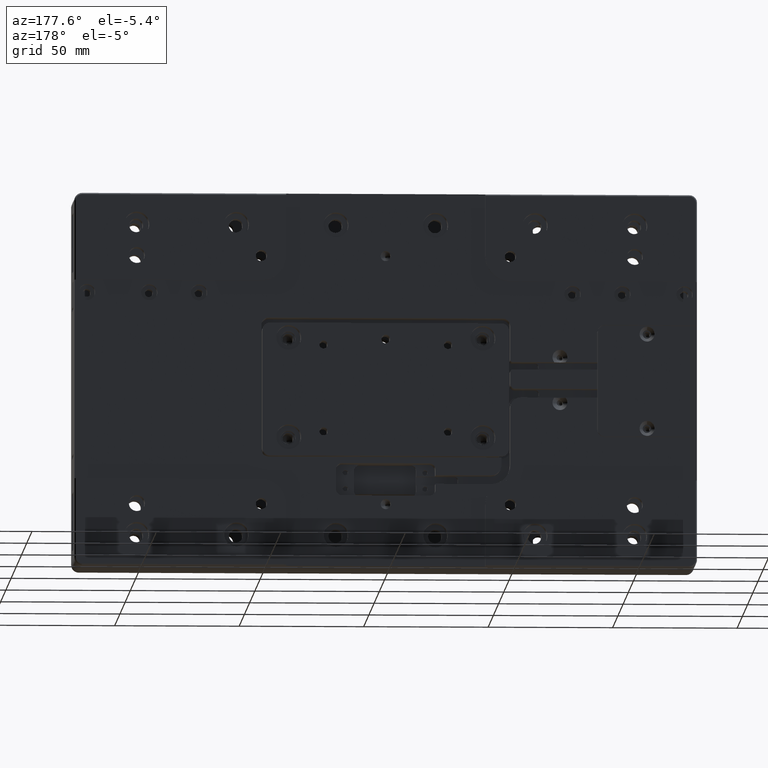
[diagram: clean part render]
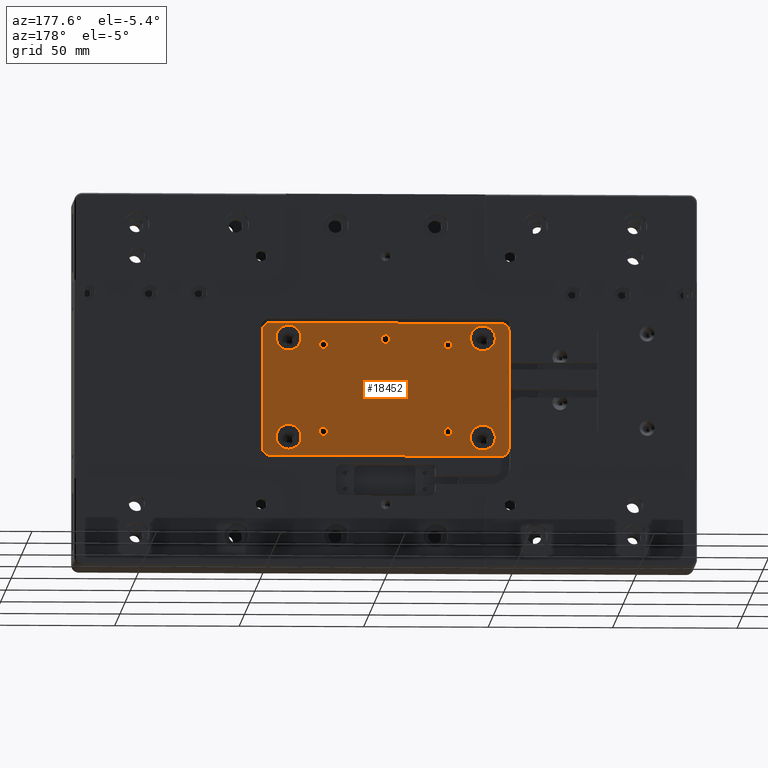
[diagram: same view with one face highlighted and labeled with its STEP entity id]
A machine part, auxiliary view. The second image highlights one B-rep face of the part: STEP entity #18452.
In plain terms, the highlighted planar face has unit normal (0, 1, 0).
Its self-contained STEP definition (entity closure, byte-faithful):
#138 = ORIENTED_EDGE ( 'NONE', *, *, #16861, .T. ) ;
#158 = CARTESIAN_POINT ( 'NONE',  ( 49.50000000000000000, 11.50000000000000000, -27.50000000000000000 ) ) ;
#603 = FACE_BOUND ( 'NONE', #11446, .T. ) ;
#812 = DIRECTION ( 'NONE',  ( 0.000000000000000000, 1.000000000000000000, 0.000000000000000000 ) ) ;
#910 = EDGE_CURVE ( 'NONE', #29166, #18075, #8460, .T. ) ;
#1286 = CARTESIAN_POINT ( 'NONE',  ( 39.00000000000000000, 11.50000000000000000, 22.00000000000000355 ) ) ;
#1703 = AXIS2_PLACEMENT_3D ( 'NONE', #1961, #26252, #6617 ) ;
#1726 = CARTESIAN_POINT ( 'NONE',  ( -39.00000000000000000, 11.50000000000000000, -18.00000000000000000 ) ) ;
#1756 = ORIENTED_EDGE ( 'NONE', *, *, #22002, .T. ) ;
#1917 = VERTEX_POINT ( 'NONE', #30076 ) ;
#1961 = CARTESIAN_POINT ( 'NONE',  ( 46.50000000000000000, 11.50000000000000000, -27.50000000000000000 ) ) ;
#2271 = ORIENTED_EDGE ( 'NONE', *, *, #13507, .T. ) ;
#2436 = CIRCLE ( 'NONE', #17234, 2.999999999999999112 ) ;
#2587 = DIRECTION ( 'NONE',  ( 0.000000000000000000, -0.000000000000000000, 1.000000000000000000 ) ) ;
#2752 = CIRCLE ( 'NONE', #26158, 5.000000000000000888 ) ;
#2876 = EDGE_CURVE ( 'NONE', #2991, #2991, #2752, .T. ) ;
#2991 = VERTEX_POINT ( 'NONE', #13884 ) ;
#3312 = CARTESIAN_POINT ( 'NONE',  ( 46.50000000000000000, 11.50000000000000000, 20.00000000000000000 ) ) ;
#3457 = DIRECTION ( 'NONE',  ( 0.000000000000000000, 1.000000000000000000, 0.000000000000000000 ) ) ;
#3490 = DIRECTION ( 'NONE',  ( 0.000000000000000000, -1.000000000000000000, 0.000000000000000000 ) ) ;
#3536 = ORIENTED_EDGE ( 'NONE', *, *, #15125, .T. ) ;
#3613 = CARTESIAN_POINT ( 'NONE',  ( 39.00000000000000000, 11.50000000000000000, -23.00000000000000000 ) ) ;
#3790 = CIRCLE ( 'NONE', #10034, 1.650000000000000355 ) ;
#4622 = DIRECTION ( 'NONE',  ( 0.000000000000000000, 0.000000000000000000, -1.000000000000000000 ) ) ;
#4669 = ORIENTED_EDGE ( 'NONE', *, *, #29145, .T. ) ;
#5189 = AXIS2_PLACEMENT_3D ( 'NONE', #24851, #32365, #18603 ) ;
#5218 = EDGE_LOOP ( 'NONE', ( #15465 ) ) ;
#5574 = EDGE_LOOP ( 'NONE', ( #10651 ) ) ;
#5580 = CIRCLE ( 'NONE', #8440, 1.749999999999999778 ) ;
#5934 = EDGE_CURVE ( 'NONE', #26893, #26893, #12034, .T. ) ;
#6070 = VECTOR ( 'NONE', #24892, 1000.000000000000000 ) ;
#6338 = DIRECTION ( 'NONE',  ( 0.000000000000000000, 0.000000000000000000, -1.000000000000000000 ) ) ;
#6356 = AXIS2_PLACEMENT_3D ( 'NONE', #10230, #21129, #7560 ) ;
#6617 = DIRECTION ( 'NONE',  ( 0.000000000000000000, 0.000000000000000000, 1.000000000000000000 ) ) ;
#6908 = VERTEX_POINT ( 'NONE', #23509 ) ;
#6984 = EDGE_LOOP ( 'NONE', ( #2271 ) ) ;
#7201 = EDGE_LOOP ( 'NONE', ( #20125 ) ) ;
#7560 = DIRECTION ( 'NONE',  ( 0.000000000000000000, 0.000000000000000000, 1.000000000000000000 ) ) ;
#7614 = DIRECTION ( 'NONE',  ( 0.000000000000000000, 0.000000000000000000, 1.000000000000000000 ) ) ;
#7937 = FACE_BOUND ( 'NONE', #7201, .T. ) ;
#8105 = CARTESIAN_POINT ( 'NONE',  ( -49.50000000000000000, 11.50000000000000000, 0.000000000000000000 ) ) ;
#8367 = CARTESIAN_POINT ( 'NONE',  ( -46.50000000000000000, 11.50000000000000000, 20.00000000000000000 ) ) ;
#8440 = AXIS2_PLACEMENT_3D ( 'NONE', #19898, #14339, #20418 ) ;
#8460 = LINE ( 'NONE', #19345, #6070 ) ;
#8721 = CARTESIAN_POINT ( 'NONE',  ( -49.50000000000000000, 11.50000000000000000, -27.50000000000000000 ) ) ;
#9082 = DIRECTION ( 'NONE',  ( 0.000000000000000000, -1.000000000000000000, 0.000000000000000000 ) ) ;
#9588 = EDGE_CURVE ( 'NONE', #32612, #32612, #14461, .T. ) ;
#9617 = AXIS2_PLACEMENT_3D ( 'NONE', #33906, #31919, #7614 ) ;
#10034 = AXIS2_PLACEMENT_3D ( 'NONE', #11764, #9082, #19968 ) ;
#10230 = CARTESIAN_POINT ( 'NONE',  ( 39.00000000000000000, 11.50000000000000000, 17.00000000000000000 ) ) ;
#10651 = ORIENTED_EDGE ( 'NONE', *, *, #5934, .T. ) ;
#10728 = ORIENTED_EDGE ( 'NONE', *, *, #14385, .T. ) ;
#11446 = EDGE_LOOP ( 'NONE', ( #24406 ) ) ;
#11612 = AXIS2_PLACEMENT_3D ( 'NONE', #3613, #14501, #25412 ) ;
#11750 = ORIENTED_EDGE ( 'NONE', *, *, #30340, .T. ) ;
#11764 = CARTESIAN_POINT ( 'NONE',  ( -25.00000000000000000, 11.50000000000000000, 14.25000000000000000 ) ) ;
#12034 = CIRCLE ( 'NONE', #5189, 5.000000000000000888 ) ;
#12759 = ORIENTED_EDGE ( 'NONE', *, *, #32639, .T. ) ;
#13507 = EDGE_CURVE ( 'NONE', #14851, #14851, #22904, .T. ) ;
#13884 = CARTESIAN_POINT ( 'NONE',  ( -39.00000000000000000, 11.50000000000000000, 22.00000000000000355 ) ) ;
#13998 = FACE_BOUND ( 'NONE', #6984, .T. ) ;
#14115 = ORIENTED_EDGE ( 'NONE', *, *, #30352, .T. ) ;
#14169 = FACE_BOUND ( 'NONE', #31854, .T. ) ;
#14339 = DIRECTION ( 'NONE',  ( 0.000000000000000000, -1.000000000000000000, 0.000000000000000000 ) ) ;
#14385 = EDGE_CURVE ( 'NONE', #17993, #29166, #2436, .T. ) ;
#14461 = CIRCLE ( 'NONE', #11612, 5.000000000000000888 ) ;
#14501 = DIRECTION ( 'NONE',  ( -0.000000000000000000, -1.000000000000000000, -0.000000000000000000 ) ) ;
#14561 = CIRCLE ( 'NONE', #34564, 1.650000000000000355 ) ;
#14679 = EDGE_CURVE ( 'NONE', #29848, #29848, #28712, .T. ) ;
#14791 = CIRCLE ( 'NONE', #1703, 2.999999999999999112 ) ;
#14851 = VERTEX_POINT ( 'NONE', #1286 ) ;
#15125 = EDGE_CURVE ( 'NONE', #20831, #1917, #23576, .T. ) ;
#15301 = VERTEX_POINT ( 'NONE', #18159 ) ;
#15465 = ORIENTED_EDGE ( 'NONE', *, *, #2876, .T. ) ;
#16073 = CARTESIAN_POINT ( 'NONE',  ( 25.00000000000000000, 11.50000000000000000, -22.39999999999999858 ) ) ;
#16538 = DIRECTION ( 'NONE',  ( 0.000000000000000000, 0.000000000000000000, 1.000000000000000000 ) ) ;
#16861 = EDGE_CURVE ( 'NONE', #19305, #19305, #14561, .T. ) ;
#16883 = DIRECTION ( 'NONE',  ( 0.000000000000000000, 0.000000000000000000, 1.000000000000000000 ) ) ;
#17234 = AXIS2_PLACEMENT_3D ( 'NONE', #3312, #812, #16883 ) ;
#17504 = DIRECTION ( 'NONE',  ( -1.000000000000000000, -0.000000000000000000, 0.000000000000000000 ) ) ;
#17824 = ORIENTED_EDGE ( 'NONE', *, *, #910, .T. ) ;
#17887 = AXIS2_PLACEMENT_3D ( 'NONE', #8367, #30522, #22118 ) ;
#17993 = VERTEX_POINT ( 'NONE', #26425 ) ;
#18036 = CARTESIAN_POINT ( 'NONE',  ( -25.00000000000000000, 11.50000000000000000, 12.59999999999999964 ) ) ;
#18075 = VERTEX_POINT ( 'NONE', #158 ) ;
#18159 = CARTESIAN_POINT ( 'NONE',  ( 46.50000000000000000, 11.50000000000000000, -30.50000000000000000 ) ) ;
#18199 = CARTESIAN_POINT ( 'NONE',  ( -25.00000000000000000, 11.50000000000000000, -20.75000000000000000 ) ) ;
#18202 = VERTEX_POINT ( 'NONE', #8721 ) ;
#18452 = ADVANCED_FACE ( 'NONE', ( #7937, #13998, #603, #27769, #30265, #14169, #33130, #32958, #19187, #19718 ), #27935, .T. ) ;
#18603 = DIRECTION ( 'NONE',  ( 0.000000000000000000, 0.000000000000000000, 1.000000000000000000 ) ) ;
#18694 = CARTESIAN_POINT ( 'NONE',  ( -39.00000000000000000, 11.50000000000000000, 17.00000000000000000 ) ) ;
#18854 = CARTESIAN_POINT ( 'NONE',  ( -25.00000000000000000, 11.50000000000000000, -22.39999999999999858 ) ) ;
#19187 = FACE_BOUND ( 'NONE', #33538, .T. ) ;
#19305 = VERTEX_POINT ( 'NONE', #24847 ) ;
#19345 = CARTESIAN_POINT ( 'NONE',  ( 49.50000000000000000, 11.50000000000000000, 0.000000000000000000 ) ) ;
#19364 = VECTOR ( 'NONE', #17504, 1000.000000000000000 ) ;
#19593 = EDGE_CURVE ( 'NONE', #31796, #31796, #3790, .T. ) ;
#19718 = FACE_OUTER_BOUND ( 'NONE', #23464, .T. ) ;
#19769 = VERTEX_POINT ( 'NONE', #32627 ) ;
#19898 = CARTESIAN_POINT ( 'NONE',  ( 0.000000000000000000, 11.50000000000000000, 16.57000000000000028 ) ) ;
#19968 = DIRECTION ( 'NONE',  ( 0.000000000000000000, 0.000000000000000000, -1.000000000000000000 ) ) ;
#20125 = ORIENTED_EDGE ( 'NONE', *, *, #27513, .T. ) ;
#20418 = DIRECTION ( 'NONE',  ( 0.000000000000000000, 0.000000000000000000, -1.000000000000000000 ) ) ;
#20831 = VERTEX_POINT ( 'NONE', #27642 ) ;
#21129 = DIRECTION ( 'NONE',  ( -0.000000000000000000, -1.000000000000000000, -0.000000000000000000 ) ) ;
#21156 = CARTESIAN_POINT ( 'NONE',  ( 0.000000000000000000, 11.50000000000000000, 23.00000000000000000 ) ) ;
#21545 = VERTEX_POINT ( 'NONE', #18854 ) ;
#22002 = EDGE_CURVE ( 'NONE', #1917, #17993, #26720, .T. ) ;
#22118 = DIRECTION ( 'NONE',  ( 0.000000000000000000, 0.000000000000000000, 1.000000000000000000 ) ) ;
#22771 = ORIENTED_EDGE ( 'NONE', *, *, #19593, .T. ) ;
#22904 = CIRCLE ( 'NONE', #6356, 5.000000000000000888 ) ;
#22992 = EDGE_LOOP ( 'NONE', ( #138 ) ) ;
#23218 = LINE ( 'NONE', #34133, #19364 ) ;
#23375 = DIRECTION ( 'NONE',  ( 0.000000000000000000, -1.000000000000000000, 0.000000000000000000 ) ) ;
#23384 = EDGE_LOOP ( 'NONE', ( #4669 ) ) ;
#23464 = EDGE_LOOP ( 'NONE', ( #17824, #11750, #14115, #33352, #12759, #3536, #1756, #10728 ) ) ;
#23509 = CARTESIAN_POINT ( 'NONE',  ( 0.000000000000000000, 11.50000000000000000, 14.82000000000000206 ) ) ;
#23576 = CIRCLE ( 'NONE', #17887, 2.999999999999999112 ) ;
#24009 = LINE ( 'NONE', #8105, #26432 ) ;
#24203 = DIRECTION ( 'NONE',  ( 1.000000000000000000, 0.000000000000000000, -0.000000000000000000 ) ) ;
#24406 = ORIENTED_EDGE ( 'NONE', *, *, #9588, .T. ) ;
#24691 = AXIS2_PLACEMENT_3D ( 'NONE', #32218, #30078, #24692 ) ;
#24692 = DIRECTION ( 'NONE',  ( 0.000000000000000000, 0.000000000000000000, -1.000000000000000000 ) ) ;
#24847 = CARTESIAN_POINT ( 'NONE',  ( 25.00000000000000000, 11.50000000000000000, 12.59999999999999964 ) ) ;
#24851 = CARTESIAN_POINT ( 'NONE',  ( -39.00000000000000000, 11.50000000000000000, -23.00000000000000000 ) ) ;
#24892 = DIRECTION ( 'NONE',  ( -0.000000000000000000, 0.000000000000000000, -1.000000000000000000 ) ) ;
#25034 = ORIENTED_EDGE ( 'NONE', *, *, #14679, .T. ) ;
#25412 = DIRECTION ( 'NONE',  ( 0.000000000000000000, 0.000000000000000000, 1.000000000000000000 ) ) ;
#25594 = CARTESIAN_POINT ( 'NONE',  ( 39.00000000000000000, 11.50000000000000000, -18.00000000000000000 ) ) ;
#26158 = AXIS2_PLACEMENT_3D ( 'NONE', #18694, #27281, #16538 ) ;
#26252 = DIRECTION ( 'NONE',  ( 0.000000000000000000, 1.000000000000000000, 0.000000000000000000 ) ) ;
#26425 = CARTESIAN_POINT ( 'NONE',  ( 46.49999997590000334, 11.50000000000000000, 23.00000000000000000 ) ) ;
#26432 = VECTOR ( 'NONE', #2587, 1000.000000000000000 ) ;
#26720 = LINE ( 'NONE', #21156, #33291 ) ;
#26726 = CIRCLE ( 'NONE', #30715, 1.649999999999998579 ) ;
#26893 = VERTEX_POINT ( 'NONE', #1726 ) ;
#27281 = DIRECTION ( 'NONE',  ( -0.000000000000000000, -1.000000000000000000, -0.000000000000000000 ) ) ;
#27513 = EDGE_CURVE ( 'NONE', #6908, #6908, #5580, .T. ) ;
#27642 = CARTESIAN_POINT ( 'NONE',  ( -49.50000000000000000, 11.50000000000000000, 20.00000000000000000 ) ) ;
#27769 = FACE_BOUND ( 'NONE', #5218, .T. ) ;
#27935 = PLANE ( 'NONE',  #28268 ) ;
#27964 = CARTESIAN_POINT ( 'NONE',  ( 25.00000000000000000, 11.50000000000000000, 14.25000000000000000 ) ) ;
#28268 = AXIS2_PLACEMENT_3D ( 'NONE', #30094, #3457, #30628 ) ;
#28712 = CIRCLE ( 'NONE', #24691, 1.649999999999998579 ) ;
#29145 = EDGE_CURVE ( 'NONE', #21545, #21545, #26726, .T. ) ;
#29166 = VERTEX_POINT ( 'NONE', #31261 ) ;
#29644 = EDGE_CURVE ( 'NONE', #19769, #18202, #33595, .T. ) ;
#29848 = VERTEX_POINT ( 'NONE', #16073 ) ;
#30076 = CARTESIAN_POINT ( 'NONE',  ( -46.50000000000000000, 11.50000000000000000, 23.00000000000000000 ) ) ;
#30078 = DIRECTION ( 'NONE',  ( 0.000000000000000000, -1.000000000000000000, 0.000000000000000000 ) ) ;
#30094 = CARTESIAN_POINT ( 'NONE',  ( 0.000000000000000000, 11.50000000000000000, 0.000000000000000000 ) ) ;
#30265 = FACE_BOUND ( 'NONE', #5574, .T. ) ;
#30340 = EDGE_CURVE ( 'NONE', #18075, #15301, #14791, .T. ) ;
#30352 = EDGE_CURVE ( 'NONE', #15301, #19769, #23218, .T. ) ;
#30522 = DIRECTION ( 'NONE',  ( 0.000000000000000000, 1.000000000000000000, 0.000000000000000000 ) ) ;
#30628 = DIRECTION ( 'NONE',  ( 0.000000000000000000, -0.000000000000000000, 1.000000000000000000 ) ) ;
#30715 = AXIS2_PLACEMENT_3D ( 'NONE', #18199, #23375, #4622 ) ;
#31261 = CARTESIAN_POINT ( 'NONE',  ( 49.50000000000000000, 11.50000000000000000, 20.00000000000000000 ) ) ;
#31796 = VERTEX_POINT ( 'NONE', #18036 ) ;
#31854 = EDGE_LOOP ( 'NONE', ( #22771 ) ) ;
#31919 = DIRECTION ( 'NONE',  ( 0.000000000000000000, 1.000000000000000000, 0.000000000000000000 ) ) ;
#32218 = CARTESIAN_POINT ( 'NONE',  ( 25.00000000000000000, 11.50000000000000000, -20.75000000000000000 ) ) ;
#32365 = DIRECTION ( 'NONE',  ( -0.000000000000000000, -1.000000000000000000, -0.000000000000000000 ) ) ;
#32612 = VERTEX_POINT ( 'NONE', #25594 ) ;
#32627 = CARTESIAN_POINT ( 'NONE',  ( -46.50000000000000000, 11.50000000000000000, -30.50000000000000000 ) ) ;
#32639 = EDGE_CURVE ( 'NONE', #18202, #20831, #24009, .T. ) ;
#32958 = FACE_BOUND ( 'NONE', #23384, .T. ) ;
#33130 = FACE_BOUND ( 'NONE', #22992, .T. ) ;
#33291 = VECTOR ( 'NONE', #24203, 1000.000000000000000 ) ;
#33352 = ORIENTED_EDGE ( 'NONE', *, *, #29644, .T. ) ;
#33538 = EDGE_LOOP ( 'NONE', ( #25034 ) ) ;
#33595 = CIRCLE ( 'NONE', #9617, 2.999999999999999112 ) ;
#33906 = CARTESIAN_POINT ( 'NONE',  ( -46.50000000000000000, 11.50000000000000000, -27.50000000000000000 ) ) ;
#34133 = CARTESIAN_POINT ( 'NONE',  ( 0.000000000000000000, 11.50000000000000000, -30.50000000000000000 ) ) ;
#34564 = AXIS2_PLACEMENT_3D ( 'NONE', #27964, #3490, #6338 ) ;